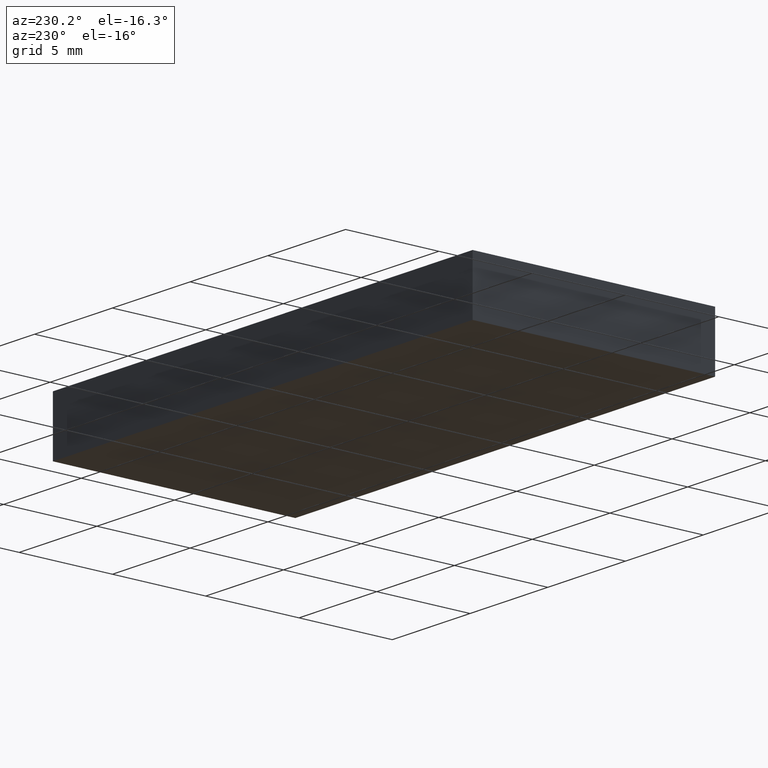
[diagram: clean part render]
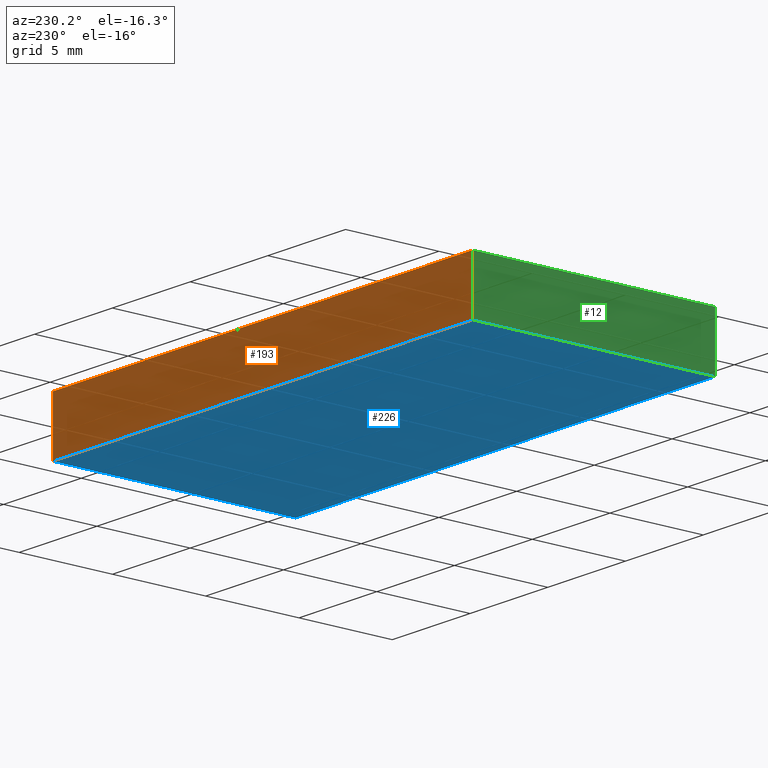
[diagram: same view with three faces highlighted in distinct colors, each labeled with its STEP entity id]
A machine part, auxiliary view with three faces highlighted in distinct colors.
Their STEP definitions:

[orange] entity #193 — the highlighted planar face has unit normal (0, -1, 0).
#5 = AXIS2_PLACEMENT_3D ( 'NONE', #29, #199, #30 ) ;
#11 = LINE ( 'NONE', #141, #157 ) ;
#14 = CARTESIAN_POINT ( 'NONE',  ( -11.96875000000000178, 6.500000000000000888, 0.0000000000000000000 ) ) ;
#19 = CARTESIAN_POINT ( 'NONE',  ( -11.96875000000000178, 6.500000000000000888, 3.000000000000000000 ) ) ;
#29 = CARTESIAN_POINT ( 'NONE',  ( -11.96875000000000178, 6.500000000000000888, 3.000000000000000000 ) ) ;
#30 = DIRECTION ( 'NONE',  ( 0.0000000000000000000, -0.0000000000000000000, -1.000000000000000000 ) ) ;
#46 = DIRECTION ( 'NONE',  ( -1.000000000000000000, -0.0000000000000000000, -0.0000000000000000000 ) ) ;
#52 = FACE_OUTER_BOUND ( 'NONE', #69, .T. ) ;
#53 = EDGE_CURVE ( 'NONE', #101, #174, #11, .T. ) ;
#69 = EDGE_LOOP ( 'NONE', ( #171, #122, #204, #129 ) ) ;
#80 = PLANE ( 'NONE',  #5 ) ;
#94 = VECTOR ( 'NONE', #165, 1000.000000000000000 ) ;
#95 = VECTOR ( 'NONE', #237, 1000.000000000000000 ) ;
#99 = CARTESIAN_POINT ( 'NONE',  ( 15.03124999999999822, 6.500000000000000888, 0.0000000000000000000 ) ) ;
#101 = VERTEX_POINT ( 'NONE', #99 ) ;
#120 = VERTEX_POINT ( 'NONE', #19 ) ;
#121 = CARTESIAN_POINT ( 'NONE',  ( 15.03124999999999822, 6.500000000000000888, 3.000000000000000000 ) ) ;
#122 = ORIENTED_EDGE ( 'NONE', *, *, #166, .F. ) ;
#124 = LINE ( 'NONE', #126, #94 ) ;
#126 = CARTESIAN_POINT ( 'NONE',  ( -11.96875000000000178, 6.500000000000000888, 3.000000000000000000 ) ) ;
#129 = ORIENTED_EDGE ( 'NONE', *, *, #213, .T. ) ;
#141 = CARTESIAN_POINT ( 'NONE',  ( -11.96875000000000178, 6.500000000000000888, 0.0000000000000000000 ) ) ;
#157 = VECTOR ( 'NONE', #46, 1000.000000000000000 ) ;
#161 = LINE ( 'NONE', #205, #169 ) ;
#164 = CARTESIAN_POINT ( 'NONE',  ( 15.03124999999999822, 6.500000000000000888, 3.000000000000000000 ) ) ;
#165 = DIRECTION ( 'NONE',  ( -0.0000000000000000000, -0.0000000000000000000, -1.000000000000000000 ) ) ;
#166 = EDGE_CURVE ( 'NONE', #120, #174, #124, .T. ) ;
#169 = VECTOR ( 'NONE', #176, 1000.000000000000000 ) ;
#171 = ORIENTED_EDGE ( 'NONE', *, *, #53, .T. ) ;
#174 = VERTEX_POINT ( 'NONE', #14 ) ;
#175 = VERTEX_POINT ( 'NONE', #121 ) ;
#176 = DIRECTION ( 'NONE',  ( -1.000000000000000000, -0.0000000000000000000, -0.0000000000000000000 ) ) ;
#179 = LINE ( 'NONE', #164, #95 ) ;
#193 = ADVANCED_FACE ( 'NONE', ( #52 ), #80, .F. ) ;
#199 = DIRECTION ( 'NONE',  ( 0.0000000000000000000, -1.000000000000000000, 0.0000000000000000000 ) ) ;
#203 = EDGE_CURVE ( 'NONE', #175, #120, #161, .T. ) ;
#204 = ORIENTED_EDGE ( 'NONE', *, *, #203, .F. ) ;
#205 = CARTESIAN_POINT ( 'NONE',  ( -11.96875000000000178, 6.500000000000000888, 3.000000000000000000 ) ) ;
#213 = EDGE_CURVE ( 'NONE', #175, #101, #179, .T. ) ;
#237 = DIRECTION ( 'NONE',  ( -0.0000000000000000000, -0.0000000000000000000, -1.000000000000000000 ) ) ;

[blue] entity #226 — the highlighted planar face has unit normal (0, 0, -1).
#6 = ORIENTED_EDGE ( 'NONE', *, *, #189, .F. ) ;
#9 = ORIENTED_EDGE ( 'NONE', *, *, #53, .F. ) ;
#11 = LINE ( 'NONE', #141, #157 ) ;
#13 = CARTESIAN_POINT ( 'NONE',  ( 15.03124999999999645, -6.499999999999990230, 0.0000000000000000000 ) ) ;
#14 = CARTESIAN_POINT ( 'NONE',  ( -11.96875000000000178, 6.500000000000000888, 0.0000000000000000000 ) ) ;
#18 = ORIENTED_EDGE ( 'NONE', *, *, #180, .F. ) ;
#20 = DIRECTION ( 'NONE',  ( 1.334402673828314079E-16, 1.000000000000000000, -0.0000000000000000000 ) ) ;
#27 = DIRECTION ( 'NONE',  ( 1.000000000000000000, 3.212450881438532241E-16, 0.0000000000000000000 ) ) ;
#34 = CARTESIAN_POINT ( 'NONE',  ( 15.03124999999999822, 6.500000000000000888, 0.0000000000000000000 ) ) ;
#42 = EDGE_CURVE ( 'NONE', #142, #117, #114, .T. ) ;
#46 = DIRECTION ( 'NONE',  ( -1.000000000000000000, -0.0000000000000000000, -0.0000000000000000000 ) ) ;
#53 = EDGE_CURVE ( 'NONE', #101, #174, #11, .T. ) ;
#63 = LINE ( 'NONE', #34, #134 ) ;
#67 = DIRECTION ( 'NONE',  ( 0.0000000000000000000, 0.0000000000000000000, -1.000000000000000000 ) ) ;
#71 = PLANE ( 'NONE',  #138 ) ;
#81 = DIRECTION ( 'NONE',  ( 0.0000000000000000000, -1.000000000000000000, 0.0000000000000000000 ) ) ;
#85 = LINE ( 'NONE', #229, #194 ) ;
#99 = CARTESIAN_POINT ( 'NONE',  ( 15.03124999999999822, 6.500000000000000888, 0.0000000000000000000 ) ) ;
#101 = VERTEX_POINT ( 'NONE', #99 ) ;
#103 = EDGE_LOOP ( 'NONE', ( #9, #6, #182, #18 ) ) ;
#104 = DIRECTION ( 'NONE',  ( -1.000000000000000000, 0.0000000000000000000, -0.0000000000000000000 ) ) ;
#114 = LINE ( 'NONE', #192, #158 ) ;
#117 = VERTEX_POINT ( 'NONE', #13 ) ;
#134 = VECTOR ( 'NONE', #20, 1000.000000000000000 ) ;
#138 = AXIS2_PLACEMENT_3D ( 'NONE', #217, #67, #104 ) ;
#141 = CARTESIAN_POINT ( 'NONE',  ( -11.96875000000000178, 6.500000000000000888, 0.0000000000000000000 ) ) ;
#142 = VERTEX_POINT ( 'NONE', #160 ) ;
#149 = FACE_OUTER_BOUND ( 'NONE', #103, .T. ) ;
#157 = VECTOR ( 'NONE', #46, 1000.000000000000000 ) ;
#158 = VECTOR ( 'NONE', #27, 1000.000000000000000 ) ;
#160 = CARTESIAN_POINT ( 'NONE',  ( -11.96875000000000178, -6.499999999999999112, 0.0000000000000000000 ) ) ;
#174 = VERTEX_POINT ( 'NONE', #14 ) ;
#180 = EDGE_CURVE ( 'NONE', #174, #142, #85, .T. ) ;
#182 = ORIENTED_EDGE ( 'NONE', *, *, #42, .F. ) ;
#189 = EDGE_CURVE ( 'NONE', #117, #101, #63, .T. ) ;
#192 = CARTESIAN_POINT ( 'NONE',  ( -11.96875000000000178, -6.499999999999999112, 0.0000000000000000000 ) ) ;
#194 = VECTOR ( 'NONE', #81, 1000.000000000000000 ) ;
#217 = CARTESIAN_POINT ( 'NONE',  ( 0.0000000000000000000, 0.0000000000000000000, 0.0000000000000000000 ) ) ;
#226 = ADVANCED_FACE ( 'NONE', ( #149 ), #71, .T. ) ;
#229 = CARTESIAN_POINT ( 'NONE',  ( -11.96875000000000178, 6.500000000000000888, 0.0000000000000000000 ) ) ;

[green] entity #12 — the highlighted planar face has unit normal (1, 0, -0).
#4 = PLANE ( 'NONE',  #221 ) ;
#12 = ADVANCED_FACE ( 'NONE', ( #55 ), #4, .F. ) ;
#14 = CARTESIAN_POINT ( 'NONE',  ( -11.96875000000000178, 6.500000000000000888, 0.0000000000000000000 ) ) ;
#17 = CARTESIAN_POINT ( 'NONE',  ( -11.96875000000000178, -6.499999999999999112, 3.000000000000000000 ) ) ;
#19 = CARTESIAN_POINT ( 'NONE',  ( -11.96875000000000178, 6.500000000000000888, 3.000000000000000000 ) ) ;
#32 = DIRECTION ( 'NONE',  ( 0.0000000000000000000, -1.000000000000000000, 0.0000000000000000000 ) ) ;
#43 = DIRECTION ( 'NONE',  ( -0.0000000000000000000, 0.0000000000000000000, -1.000000000000000000 ) ) ;
#47 = VECTOR ( 'NONE', #32, 1000.000000000000000 ) ;
#55 = FACE_OUTER_BOUND ( 'NONE', #125, .T. ) ;
#58 = DIRECTION ( 'NONE',  ( 1.000000000000000000, 0.0000000000000000000, -0.0000000000000000000 ) ) ;
#72 = ORIENTED_EDGE ( 'NONE', *, *, #166, .T. ) ;
#81 = DIRECTION ( 'NONE',  ( 0.0000000000000000000, -1.000000000000000000, 0.0000000000000000000 ) ) ;
#84 = CARTESIAN_POINT ( 'NONE',  ( -11.96875000000000178, -6.499999999999999112, 3.000000000000000000 ) ) ;
#85 = LINE ( 'NONE', #229, #194 ) ;
#92 = VECTOR ( 'NONE', #130, 1000.000000000000000 ) ;
#94 = VECTOR ( 'NONE', #165, 1000.000000000000000 ) ;
#119 = EDGE_CURVE ( 'NONE', #152, #142, #201, .T. ) ;
#120 = VERTEX_POINT ( 'NONE', #19 ) ;
#124 = LINE ( 'NONE', #126, #94 ) ;
#125 = EDGE_LOOP ( 'NONE', ( #170, #154, #219, #72 ) ) ;
#126 = CARTESIAN_POINT ( 'NONE',  ( -11.96875000000000178, 6.500000000000000888, 3.000000000000000000 ) ) ;
#130 = DIRECTION ( 'NONE',  ( -0.0000000000000000000, -0.0000000000000000000, -1.000000000000000000 ) ) ;
#132 = CARTESIAN_POINT ( 'NONE',  ( -11.96875000000000178, 6.500000000000000888, 3.000000000000000000 ) ) ;
#142 = VERTEX_POINT ( 'NONE', #160 ) ;
#148 = LINE ( 'NONE', #178, #47 ) ;
#152 = VERTEX_POINT ( 'NONE', #17 ) ;
#154 = ORIENTED_EDGE ( 'NONE', *, *, #119, .F. ) ;
#160 = CARTESIAN_POINT ( 'NONE',  ( -11.96875000000000178, -6.499999999999999112, 0.0000000000000000000 ) ) ;
#165 = DIRECTION ( 'NONE',  ( -0.0000000000000000000, -0.0000000000000000000, -1.000000000000000000 ) ) ;
#166 = EDGE_CURVE ( 'NONE', #120, #174, #124, .T. ) ;
#170 = ORIENTED_EDGE ( 'NONE', *, *, #180, .T. ) ;
#174 = VERTEX_POINT ( 'NONE', #14 ) ;
#178 = CARTESIAN_POINT ( 'NONE',  ( -11.96875000000000178, 6.500000000000000888, 3.000000000000000000 ) ) ;
#180 = EDGE_CURVE ( 'NONE', #174, #142, #85, .T. ) ;
#194 = VECTOR ( 'NONE', #81, 1000.000000000000000 ) ;
#201 = LINE ( 'NONE', #84, #92 ) ;
#219 = ORIENTED_EDGE ( 'NONE', *, *, #230, .F. ) ;
#221 = AXIS2_PLACEMENT_3D ( 'NONE', #132, #58, #43 ) ;
#229 = CARTESIAN_POINT ( 'NONE',  ( -11.96875000000000178, 6.500000000000000888, 0.0000000000000000000 ) ) ;
#230 = EDGE_CURVE ( 'NONE', #120, #152, #148, .T. ) ;